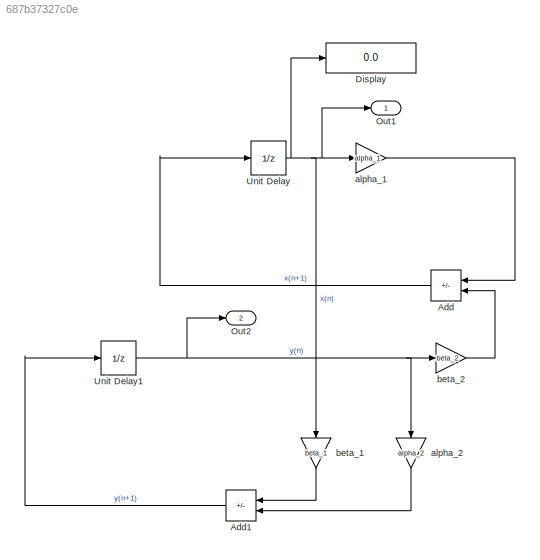
MODEL slx_687b37327c0e
KIND model
CONFIG AbsTol = auto
CONFIG EnableMultiTasking = off
CONFIG FixedStep = 1
CONFIG MaxStep = auto
CONFIG MinStep = auto
CONFIG RelTol = 1e-3
CONFIG SampleTimeConstraint = Unconstrained
CONFIG SolverName = FixedStepDiscrete
CONFIG StartTime = 0
CONFIG StopTime = 10
BLOCK [Sum] Add
  IconShape = rectangular
  Inputs = +-
  NameLocation = top
BLOCK [Sum] Add1
  IconShape = rectangular
  Inputs = -+
BLOCK [Display] Display
  Decimation = 1
BLOCK [Outport] Out1
BLOCK [Outport] Out2
  Port = 2
BLOCK [UnitDelay] Unit Delay
  HasFrameUpgradeWarning = on
  InitialCondition = F0(1)
  SampleTime = -1
BLOCK [UnitDelay] Unit Delay1
  HasFrameUpgradeWarning = on
  InitialCondition = F0(2)
  SampleTime = -1
BLOCK [Gain] alpha_1
  Gain = alpha_1
BLOCK [Gain] alpha_2
  Gain = alpha_2
  NameLocation = left
BLOCK [Gain] beta_1
  Gain = beta_1
  NameLocation = left
BLOCK [Gain] beta_2
  Gain = beta_2
LINE Add1:1 -> Unit Delay1:1
LINE Add:1 -> Unit Delay:1
NET Unit Delay1:1 -> Out2:1, alpha_2:1, beta_2:1
NET Unit Delay:1 -> Display:1, Out1:1, alpha_1:1, beta_1:1
LINE alpha_1:1 -> Add:1
LINE alpha_2:1 -> Add1:2
LINE beta_1:1 -> Add1:1
LINE beta_2:1 -> Add:2
note: NET lines group one-source signal fan-out (src -> all destinations, sorted); 1:1 wires keep LINE
